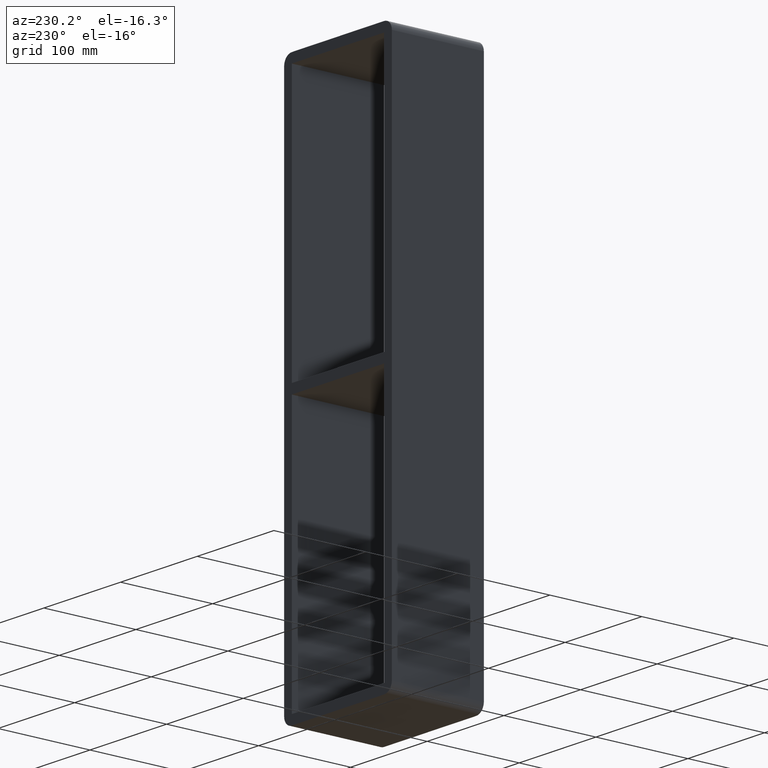
[diagram: clean part render]
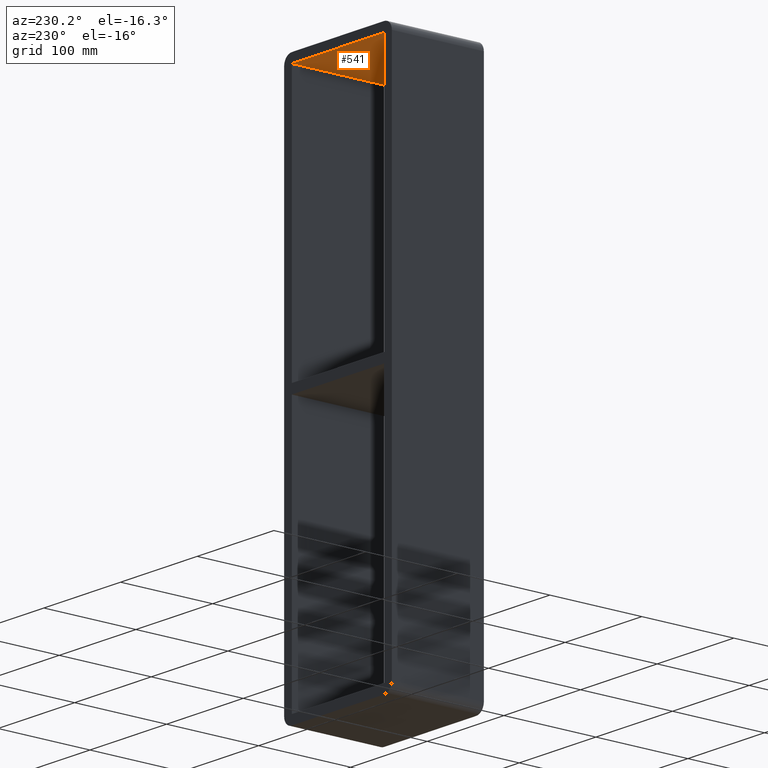
[diagram: same view with one face highlighted and labeled with its STEP entity id]
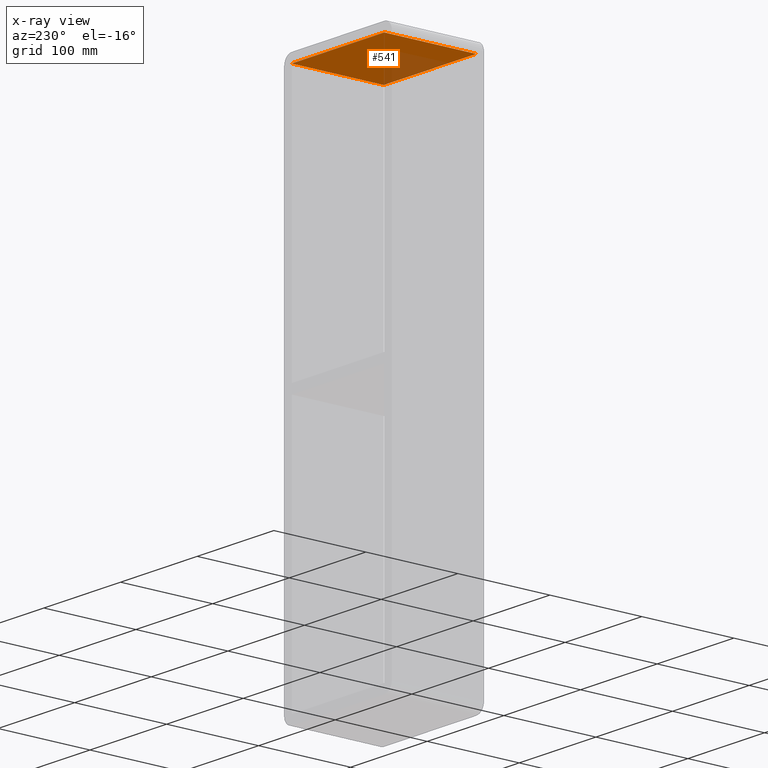
[diagram: x-ray of the same camera — body ghosted, the highlighted face saturated]
A machine part, auxiliary view. The second image highlights one B-rep face of the part: STEP entity #541.
The next image is the same camera in x-ray: the body ghosted, the highlighted face saturated — about 24% of this face is hidden behind the body in this view.
In plain terms, the highlighted planar face has unit normal (0, 0, 1).
Its self-contained STEP definition (entity closure, byte-faithful):
#154=CARTESIAN_POINT('',(-60.25,97.0,283.0));
#155=VERTEX_POINT('',#154);
#162=CARTESIAN_POINT('',(-60.25,-3.0,283.0));
#163=VERTEX_POINT('',#162);
#164=CARTESIAN_POINT('',(-60.25,-3.0,283.0));
#165=DIRECTION('',(0.0,1.0,0.0));
#166=VECTOR('',#165,100.0);
#167=LINE('',#164,#166);
#168=EDGE_CURVE('',#163,#155,#167,.T.);
#216=CARTESIAN_POINT('',(60.25,-3.0,283.0));
#217=VERTEX_POINT('',#216);
#224=CARTESIAN_POINT('',(60.25,97.0,283.0));
#225=VERTEX_POINT('',#224);
#226=CARTESIAN_POINT('',(60.25,-3.0,283.0));
#227=DIRECTION('',(0.0,1.0,0.0));
#228=VECTOR('',#227,100.0);
#229=LINE('',#226,#228);
#230=EDGE_CURVE('',#217,#225,#229,.T.);
#349=CARTESIAN_POINT('',(-60.25,-3.0,283.0));
#350=DIRECTION('',(1.0,0.0,0.0));
#351=VECTOR('',#350,120.50000000000001);
#352=LINE('',#349,#351);
#353=EDGE_CURVE('',#163,#217,#352,.T.);
#525=CARTESIAN_POINT('',(-60.25,0.0,283.0));
#526=DIRECTION('',(0.0,0.0,1.0));
#527=DIRECTION('',(1.0,0.0,0.0));
#528=AXIS2_PLACEMENT_3D('',#525,#526,#527);
#529=PLANE('',#528);
#530=ORIENTED_EDGE('',*,*,#230,.F.);
#531=ORIENTED_EDGE('',*,*,#353,.F.);
#532=ORIENTED_EDGE('',*,*,#168,.T.);
#533=CARTESIAN_POINT('',(60.250000000000014,97.0,283.0));
#534=DIRECTION('',(-1.0,0.0,0.0));
#535=VECTOR('',#534,120.50000000000001);
#536=LINE('',#533,#535);
#537=EDGE_CURVE('',#225,#155,#536,.T.);
#538=ORIENTED_EDGE('',*,*,#537,.F.);
#539=EDGE_LOOP('',(#530,#531,#532,#538));
#540=FACE_OUTER_BOUND('',#539,.T.);
#541=ADVANCED_FACE('',(#540),#529,.F.);